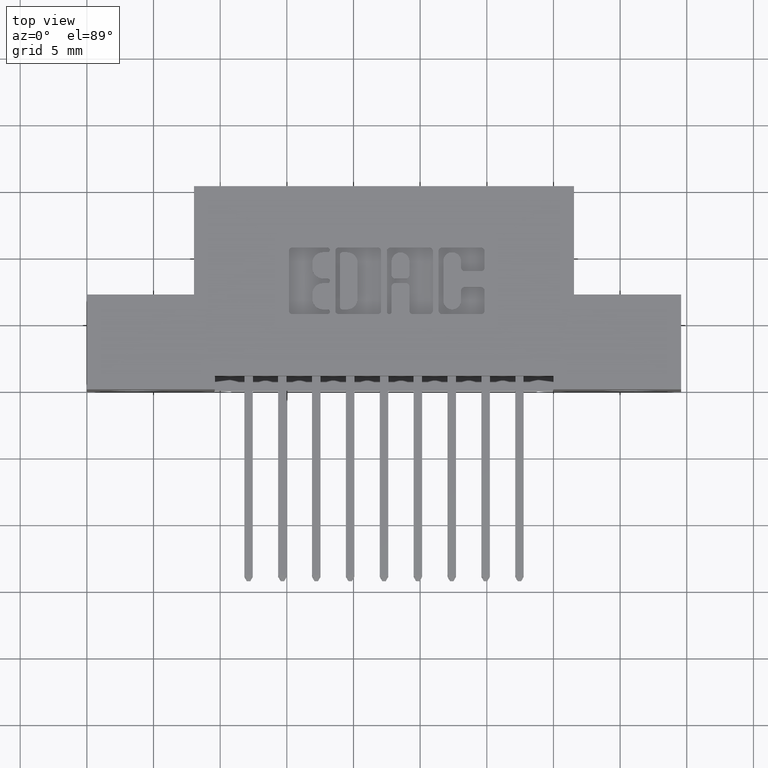
[diagram: clean part render]
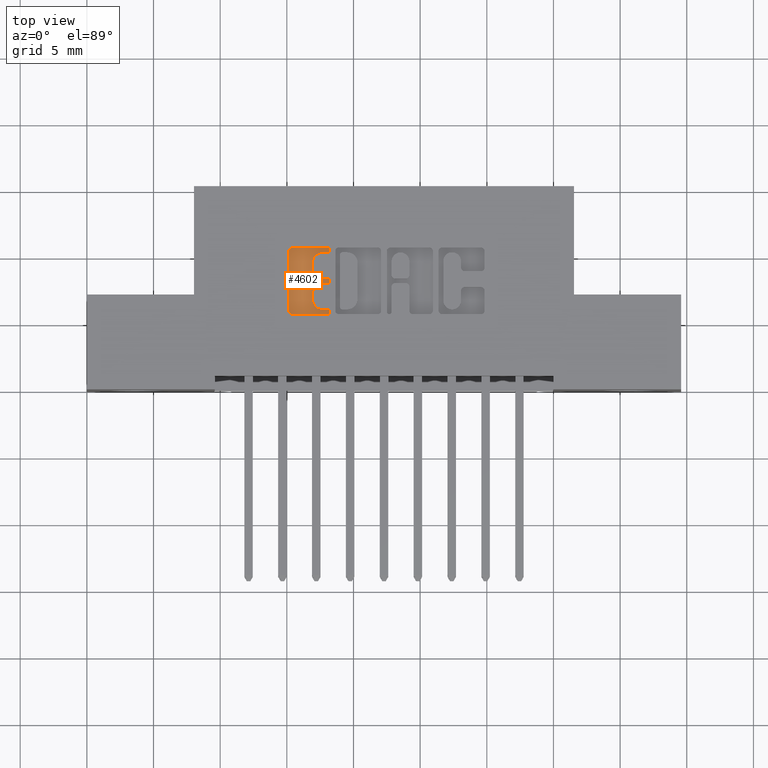
[diagram: same view with one face highlighted and labeled with its STEP entity id]
A machine part, top view. The second image highlights one B-rep face of the part: STEP entity #4602.
In plain terms, the highlighted planar face has unit normal (0, 0, 1).
Its self-contained STEP definition (entity closure, byte-faithful):
#32 = DIRECTION ( 'NONE',  ( 1.000000000000000000, 0.0000000000000000000, 0.0000000000000000000 ) ) ;
#43 = CARTESIAN_POINT ( 'NONE',  ( 0.6971370600051096700, 0.2669953808994903200, -0.01000000000000000000 ) ) ;
#83 = LINE ( 'NONE', #3894, #7371 ) ;
#114 = CARTESIAN_POINT ( 'NONE',  ( 0.6657269153529095100, 0.3730046191005197400, -0.01000000000000000000 ) ) ;
#207 = VERTEX_POINT ( 'NONE', #114 ) ;
#212 = DIRECTION ( 'NONE',  ( 1.000000000000000000, 0.0000000000000000000, 0.0000000000000000000 ) ) ;
#277 = CARTESIAN_POINT ( 'NONE',  ( 0.5965264404161154700, 0.0000000000000000000, -0.01000000000000000000 ) ) ;
#287 = CARTESIAN_POINT ( 'NONE',  ( 0.7106336065353514600, 0.4044147637527356600, -0.01000000000000000000 ) ) ;
#301 = DIRECTION ( 'NONE',  ( 1.000000000000000000, 0.0000000000000000000, 0.0000000000000000000 ) ) ;
#330 = EDGE_CURVE ( 'NONE', #2755, #7153, #999, .T. ) ;
#383 = CARTESIAN_POINT ( 'NONE',  ( 0.7106336065353100500, 0.3200000000000202700, -0.01000000000000000000 ) ) ;
#490 = CARTESIAN_POINT ( 'NONE',  ( 0.6657269153529278300, 0.2817188862052004700, -0.01000000000000000000 ) ) ;
#497 = CIRCLE ( 'NONE', #2945, 0.006870969142662229500 ) ;
#580 = CARTESIAN_POINT ( 'NONE',  ( 0.7175045756779977500, 0.2287142671046478700, -0.01000000000000000000 ) ) ;
#633 = AXIS2_PLACEMENT_3D ( 'NONE', #3904, #1431, #7676 ) ;
#829 = DIRECTION ( 'NONE',  ( -0.0000000000000000000, 0.0000000000000000000, 1.000000000000000000 ) ) ;
#900 = VERTEX_POINT ( 'NONE', #3642 ) ;
#962 = DIRECTION ( 'NONE',  ( -0.0000000000000000000, 0.0000000000000000000, 1.000000000000000000 ) ) ;
#999 = LINE ( 'NONE', #5216, #2473 ) ;
#1074 = DIRECTION ( 'NONE',  ( -0.0000000000000000000, 0.0000000000000000000, 1.000000000000000000 ) ) ;
#1120 = CARTESIAN_POINT ( 'NONE',  ( 0.6971370600050841300, 0.3131290308573567700, -0.01000000000000000000 ) ) ;
#1131 = DIRECTION ( 'NONE',  ( -0.0000000000000000000, 0.0000000000000000000, 1.000000000000000000 ) ) ;
#1136 = CARTESIAN_POINT ( 'NONE',  ( 0.0000000000000000000, 0.3131290308573567700, -0.01000000000000000000 ) ) ;
#1178 = EDGE_CURVE ( 'NONE', #1768, #9950, #7542, .T. ) ;
#1214 = LINE ( 'NONE', #277, #9369 ) ;
#1249 = VERTEX_POINT ( 'NONE', #8204 ) ;
#1259 = ORIENTED_EDGE ( 'NONE', *, *, #7040, .F. ) ;
#1289 = EDGE_CURVE ( 'NONE', #5987, #8254, #9887, .T. ) ;
#1293 = EDGE_CURVE ( 'NONE', #5171, #6492, #5131, .T. ) ;
#1410 = VERTEX_POINT ( 'NONE', #9040 ) ;
#1413 = AXIS2_PLACEMENT_3D ( 'NONE', #2251, #3122, #32 ) ;
#1431 = DIRECTION ( 'NONE',  ( -0.0000000000000000000, 0.0000000000000000000, 1.000000000000000000 ) ) ;
#1539 = DIRECTION ( 'NONE',  ( 1.000000000000000000, 0.0000000000000000000, 0.0000000000000000000 ) ) ;
#1591 = ORIENTED_EDGE ( 'NONE', *, *, #2964, .T. ) ;
#1634 = ORIENTED_EDGE ( 'NONE', *, *, #1178, .T. ) ;
#1736 = AXIS2_PLACEMENT_3D ( 'NONE', #3467, #1131, #6582 ) ;
#1768 = VERTEX_POINT ( 'NONE', #8764 ) ;
#1814 = VECTOR ( 'NONE', #7881, 39.37007874015748100 ) ;
#1974 = CARTESIAN_POINT ( 'NONE',  ( 0.6063421106199380400, 0.4083410318342100600, -0.01000000000000000000 ) ) ;
#2111 = DIRECTION ( 'NONE',  ( -1.000000000000000000, 0.0000000000000000000, 0.0000000000000000000 ) ) ;
#2159 = FACE_OUTER_BOUND ( 'NONE', #10035, .T. ) ;
#2184 = DIRECTION ( 'NONE',  ( -0.0000000000000000000, 0.0000000000000000000, 1.000000000000000000 ) ) ;
#2251 = CARTESIAN_POINT ( 'NONE',  ( 0.0000000000000000000, 0.0000000000000000000, -0.01000000000000000000 ) ) ;
#2415 = VERTEX_POINT ( 'NONE', #4291 ) ;
#2468 = CARTESIAN_POINT ( 'NONE',  ( 0.6063421106199222700, 0.2316589681657898700, -0.01000000000000000000 ) ) ;
#2473 = VECTOR ( 'NONE', #2111, 39.37007874015748100 ) ;
#2548 = VECTOR ( 'NONE', #3070, 39.37007874015748100 ) ;
#2608 = CARTESIAN_POINT ( 'NONE',  ( 0.7106336065353100500, 0.3200000000000202700, -0.01000000000000000000 ) ) ;
#2708 = ORIENTED_EDGE ( 'NONE', *, *, #4150, .T. ) ;
#2743 = VERTEX_POINT ( 'NONE', #4020 ) ;
#2755 = VERTEX_POINT ( 'NONE', #3299 ) ;
#2870 = CARTESIAN_POINT ( 'NONE',  ( 0.6971370600051254300, 0.3730046191005197400, -0.01000000000000000000 ) ) ;
#2906 = CIRCLE ( 'NONE', #8642, 0.009815670203805798900 ) ;
#2945 = AXIS2_PLACEMENT_3D ( 'NONE', #9652, #6622, #5873 ) ;
#2956 = CARTESIAN_POINT ( 'NONE',  ( 0.6971370600050841300, 0.3582811137948582700, -0.01000000000000000000 ) ) ;
#2964 = EDGE_CURVE ( 'NONE', #5815, #2755, #7267, .T. ) ;
#3070 = DIRECTION ( 'NONE',  ( 1.000000000000000000, 7.203446383881649800E-015, 0.0000000000000000000 ) ) ;
#3122 = DIRECTION ( 'NONE',  ( -0.0000000000000000000, 0.0000000000000000000, 1.000000000000000000 ) ) ;
#3169 = CIRCLE ( 'NONE', #633, 0.006870969142662229500 ) ;
#3299 = CARTESIAN_POINT ( 'NONE',  ( 0.7106336065353100500, 0.3268709691426838200, -0.01000000000000000000 ) ) ;
#3319 = AXIS2_PLACEMENT_3D ( 'NONE', #1974, #7402, #5206 ) ;
#3327 = EDGE_CURVE ( 'NONE', #4131, #7153, #4755, .T. ) ;
#3369 = CARTESIAN_POINT ( 'NONE',  ( 0.6063421106199186100, 0.2218432979619849000, -0.01000000000000000000 ) ) ;
#3394 = EDGE_CURVE ( 'NONE', #900, #5171, #6325, .T. ) ;
#3467 = CARTESIAN_POINT ( 'NONE',  ( 0.7106336065353512400, 0.4112857328953862200, -0.01000000000000000000 ) ) ;
#3501 = ORIENTED_EDGE ( 'NONE', *, *, #6921, .T. ) ;
#3505 = CARTESIAN_POINT ( 'NONE',  ( 0.7106336064153888600, 0.3131290308573567700, -0.01000000000000000000 ) ) ;
#3509 = DIRECTION ( 'NONE',  ( 1.000000000000000000, 0.0000000000000000000, 0.0000000000000000000 ) ) ;
#3597 = CARTESIAN_POINT ( 'NONE',  ( 0.0000000000000000000, 0.4181567020380326800, -0.01000000000000000000 ) ) ;
#3619 = ORIENTED_EDGE ( 'NONE', *, *, #5825, .T. ) ;
#3637 = LINE ( 'NONE', #6825, #2548 ) ;
#3642 = CARTESIAN_POINT ( 'NONE',  ( 0.7175045756779997500, 0.4112857328953862200, -0.01000000000000000000 ) ) ;
#3684 = DIRECTION ( 'NONE',  ( 1.000000000000000000, 0.0000000000000000000, 0.0000000000000000000 ) ) ;
#3772 = VECTOR ( 'NONE', #5101, 39.37007874015748100 ) ;
#3781 = CIRCLE ( 'NONE', #3319, 0.009815670203822599700 ) ;
#3782 = EDGE_CURVE ( 'NONE', #2415, #207, #6561, .T. ) ;
#3869 = CIRCLE ( 'NONE', #7868, 0.03141014465218178200 ) ;
#3894 = CARTESIAN_POINT ( 'NONE',  ( 0.6657269153529095100, 0.0000000000000000000, -0.01000000000000000000 ) ) ;
#3904 = CARTESIAN_POINT ( 'NONE',  ( 0.7106336065353355800, 0.2287142671046478700, -0.01000000000000000000 ) ) ;
#3930 = CARTESIAN_POINT ( 'NONE',  ( 0.7106336064154144000, 0.2218432979619856500, -0.01000000000000000000 ) ) ;
#4020 = CARTESIAN_POINT ( 'NONE',  ( 0.5965264404161154700, 0.4083410318342100600, -0.01000000000000000000 ) ) ;
#4131 = VERTEX_POINT ( 'NONE', #7720 ) ;
#4150 = EDGE_CURVE ( 'NONE', #8969, #8027, #3637, .T. ) ;
#4268 = EDGE_CURVE ( 'NONE', #1768, #8015, #3869, .T. ) ;
#4291 = CARTESIAN_POINT ( 'NONE',  ( 0.6971370600051254300, 0.4044147637527356600, -0.01000000000000000000 ) ) ;
#4386 = DIRECTION ( 'NONE',  ( 1.000000000000000000, 0.0000000000000000000, 0.0000000000000000000 ) ) ;
#4408 = VECTOR ( 'NONE', #6447, 39.37007874015748100 ) ;
#4462 = CARTESIAN_POINT ( 'NONE',  ( 0.6971370600050841300, 0.3268709691426838200, -0.01000000000000000000 ) ) ;
#4485 = ORIENTED_EDGE ( 'NONE', *, *, #3327, .F. ) ;
#4523 = VECTOR ( 'NONE', #5094, 39.37007874015748100 ) ;
#4602 = ADVANCED_FACE ( 'NONE', ( #2159 ), #10081, .T. ) ;
#4663 = EDGE_CURVE ( 'NONE', #4131, #207, #83, .T. ) ;
#4720 = DIRECTION ( 'NONE',  ( 1.000000000000000000, 0.0000000000000000000, 0.0000000000000000000 ) ) ;
#4755 = CIRCLE ( 'NONE', #8779, 0.03141014465217454400 ) ;
#4814 = AXIS2_PLACEMENT_3D ( 'NONE', #2608, #8739, #212 ) ;
#4855 = CARTESIAN_POINT ( 'NONE',  ( 0.6657269153529278300, 0.0000000000000000000, -0.01000000000000000000 ) ) ;
#4858 = ORIENTED_EDGE ( 'NONE', *, *, #9095, .T. ) ;
#5026 = CARTESIAN_POINT ( 'NONE',  ( -2.801494792115253600E-014, 0.2355852362472256300, -0.01000000000000000000 ) ) ;
#5094 = DIRECTION ( 'NONE',  ( -1.000000000000000000, 0.0000000000000000000, 0.0000000000000000000 ) ) ;
#5101 = DIRECTION ( 'NONE',  ( -1.000000000000000000, -1.189163988687022500E-013, 0.0000000000000000000 ) ) ;
#5131 = LINE ( 'NONE', #3597, #4523 ) ;
#5171 = VERTEX_POINT ( 'NONE', #8671 ) ;
#5206 = DIRECTION ( 'NONE',  ( 1.000000000000000000, 0.0000000000000000000, 0.0000000000000000000 ) ) ;
#5216 = CARTESIAN_POINT ( 'NONE',  ( 0.0000000000000000000, 0.3268709691426838200, -0.01000000000000000000 ) ) ;
#5269 = ORIENTED_EDGE ( 'NONE', *, *, #5961, .T. ) ;
#5278 = LINE ( 'NONE', #7102, #1814 ) ;
#5648 = ORIENTED_EDGE ( 'NONE', *, *, #7039, .T. ) ;
#5815 = VERTEX_POINT ( 'NONE', #8763 ) ;
#5825 = EDGE_CURVE ( 'NONE', #2415, #6642, #5278, .T. ) ;
#5873 = DIRECTION ( 'NONE',  ( 1.000000000000000000, 0.0000000000000000000, 0.0000000000000000000 ) ) ;
#5961 = EDGE_CURVE ( 'NONE', #2743, #1249, #1214, .T. ) ;
#5968 = LINE ( 'NONE', #5026, #3772 ) ;
#5987 = VERTEX_POINT ( 'NONE', #1120 ) ;
#6089 = EDGE_CURVE ( 'NONE', #6492, #2743, #3781, .T. ) ;
#6134 = ORIENTED_EDGE ( 'NONE', *, *, #1289, .T. ) ;
#6242 = VERTEX_POINT ( 'NONE', #580 ) ;
#6304 = CARTESIAN_POINT ( 'NONE',  ( 0.7106336065353512400, 0.4112857328953862200, -0.01000000000000000000 ) ) ;
#6325 = CIRCLE ( 'NONE', #9715, 0.006870969142648433200 ) ;
#6357 = DIRECTION ( 'NONE',  ( 1.000000000000000000, 0.0000000000000000000, 0.0000000000000000000 ) ) ;
#6432 = DIRECTION ( 'NONE',  ( 1.000000000000000000, 0.0000000000000000000, 0.0000000000000000000 ) ) ;
#6447 = DIRECTION ( 'NONE',  ( 0.0000000000000000000, 1.000000000000000000, -0.0000000000000000000 ) ) ;
#6449 = EDGE_CURVE ( 'NONE', #6242, #1410, #3169, .T. ) ;
#6492 = VERTEX_POINT ( 'NONE', #9294 ) ;
#6541 = CARTESIAN_POINT ( 'NONE',  ( 0.6971370600050841300, 0.2817188862052004700, -0.01000000000000000000 ) ) ;
#6561 = CIRCLE ( 'NONE', #8066, 0.03141014465221592800 ) ;
#6582 = DIRECTION ( 'NONE',  ( 1.000000000000000000, 0.0000000000000000000, 0.0000000000000000000 ) ) ;
#6622 = DIRECTION ( 'NONE',  ( -0.0000000000000000000, 0.0000000000000000000, 1.000000000000000000 ) ) ;
#6642 = VERTEX_POINT ( 'NONE', #287 ) ;
#6793 = CIRCLE ( 'NONE', #8062, 0.03141014465215624000 ) ;
#6825 = CARTESIAN_POINT ( 'NONE',  ( -1.598036302492608100E-015, 0.2218432979619805200, -0.01000000000000000000 ) ) ;
#6921 = EDGE_CURVE ( 'NONE', #1249, #8969, #2906, .T. ) ;
#7010 = ORIENTED_EDGE ( 'NONE', *, *, #6089, .T. ) ;
#7039 = EDGE_CURVE ( 'NONE', #8254, #5815, #7378, .T. ) ;
#7040 = EDGE_CURVE ( 'NONE', #5987, #9950, #6793, .T. ) ;
#7079 = CARTESIAN_POINT ( 'NONE',  ( 0.6971370600051096700, 0.2355852362473085400, -0.01000000000000000000 ) ) ;
#7102 = CARTESIAN_POINT ( 'NONE',  ( 0.0000000000000000000, 0.4044147637527356600, -0.01000000000000000000 ) ) ;
#7153 = VERTEX_POINT ( 'NONE', #4462 ) ;
#7267 = CIRCLE ( 'NONE', #8275, 0.006870969142663458500 ) ;
#7282 = ORIENTED_EDGE ( 'NONE', *, *, #330, .T. ) ;
#7371 = VECTOR ( 'NONE', #10043, 39.37007874015748100 ) ;
#7378 = CIRCLE ( 'NONE', #4814, 0.006870969142663458500 ) ;
#7402 = DIRECTION ( 'NONE',  ( -0.0000000000000000000, 0.0000000000000000000, 1.000000000000000000 ) ) ;
#7542 = LINE ( 'NONE', #4855, #4408 ) ;
#7636 = ORIENTED_EDGE ( 'NONE', *, *, #4663, .T. ) ;
#7676 = DIRECTION ( 'NONE',  ( 1.000000000000000000, 0.0000000000000000000, 0.0000000000000000000 ) ) ;
#7720 = CARTESIAN_POINT ( 'NONE',  ( 0.6657269153529095100, 0.3582811137948582700, -0.01000000000000000000 ) ) ;
#7834 = ORIENTED_EDGE ( 'NONE', *, *, #8283, .T. ) ;
#7841 = ORIENTED_EDGE ( 'NONE', *, *, #9132, .T. ) ;
#7868 = AXIS2_PLACEMENT_3D ( 'NONE', #43, #8646, #1539 ) ;
#7881 = DIRECTION ( 'NONE',  ( 1.000000000000000000, 0.0000000000000000000, 0.0000000000000000000 ) ) ;
#8015 = VERTEX_POINT ( 'NONE', #7079 ) ;
#8027 = VERTEX_POINT ( 'NONE', #3930 ) ;
#8062 = AXIS2_PLACEMENT_3D ( 'NONE', #6541, #962, #6432 ) ;
#8066 = AXIS2_PLACEMENT_3D ( 'NONE', #2870, #2184, #3684 ) ;
#8204 = CARTESIAN_POINT ( 'NONE',  ( 0.5965264404161154700, 0.2316589681657898700, -0.01000000000000000000 ) ) ;
#8254 = VERTEX_POINT ( 'NONE', #3505 ) ;
#8275 = AXIS2_PLACEMENT_3D ( 'NONE', #383, #1074, #301 ) ;
#8283 = EDGE_CURVE ( 'NONE', #6642, #900, #9174, .T. ) ;
#8374 = ORIENTED_EDGE ( 'NONE', *, *, #6449, .T. ) ;
#8642 = AXIS2_PLACEMENT_3D ( 'NONE', #2468, #8669, #6357 ) ;
#8646 = DIRECTION ( 'NONE',  ( -0.0000000000000000000, 0.0000000000000000000, 1.000000000000000000 ) ) ;
#8669 = DIRECTION ( 'NONE',  ( -0.0000000000000000000, 0.0000000000000000000, 1.000000000000000000 ) ) ;
#8671 = CARTESIAN_POINT ( 'NONE',  ( 0.7106336065353512400, 0.4181567020380326800, -0.01000000000000000000 ) ) ;
#8739 = DIRECTION ( 'NONE',  ( -0.0000000000000000000, 0.0000000000000000000, 1.000000000000000000 ) ) ;
#8763 = CARTESIAN_POINT ( 'NONE',  ( 0.7175045756779734300, 0.3200000000000202700, -0.01000000000000000000 ) ) ;
#8764 = CARTESIAN_POINT ( 'NONE',  ( 0.6657269153529278300, 0.2669953808994903200, -0.01000000000000000000 ) ) ;
#8779 = AXIS2_PLACEMENT_3D ( 'NONE', #2956, #9010, #4386 ) ;
#8969 = VERTEX_POINT ( 'NONE', #3369 ) ;
#9010 = DIRECTION ( 'NONE',  ( -0.0000000000000000000, 0.0000000000000000000, 1.000000000000000000 ) ) ;
#9040 = CARTESIAN_POINT ( 'NONE',  ( 0.7106336064154144000, 0.2355852362473101500, -0.01000000000000000000 ) ) ;
#9095 = EDGE_CURVE ( 'NONE', #1410, #8015, #5968, .T. ) ;
#9132 = EDGE_CURVE ( 'NONE', #8027, #6242, #497, .T. ) ;
#9174 = CIRCLE ( 'NONE', #1736, 0.006870969142648433200 ) ;
#9294 = CARTESIAN_POINT ( 'NONE',  ( 0.6063421106199380400, 0.4181567020380326800, -0.01000000000000000000 ) ) ;
#9369 = VECTOR ( 'NONE', #9664, 39.37007874015748100 ) ;
#9408 = ORIENTED_EDGE ( 'NONE', *, *, #1293, .T. ) ;
#9438 = ORIENTED_EDGE ( 'NONE', *, *, #4268, .F. ) ;
#9477 = ORIENTED_EDGE ( 'NONE', *, *, #3394, .T. ) ;
#9625 = VECTOR ( 'NONE', #3509, 39.37007874015748100 ) ;
#9652 = CARTESIAN_POINT ( 'NONE',  ( 0.7106336065353355800, 0.2287142671046478700, -0.01000000000000000000 ) ) ;
#9664 = DIRECTION ( 'NONE',  ( 0.0000000000000000000, -1.000000000000000000, 0.0000000000000000000 ) ) ;
#9715 = AXIS2_PLACEMENT_3D ( 'NONE', #6304, #829, #4720 ) ;
#9887 = LINE ( 'NONE', #1136, #9625 ) ;
#9930 = ORIENTED_EDGE ( 'NONE', *, *, #3782, .F. ) ;
#9950 = VERTEX_POINT ( 'NONE', #490 ) ;
#10035 = EDGE_LOOP ( 'NONE', ( #9930, #3619, #7834, #9477, #9408, #7010, #5269, #3501, #2708, #7841, #8374, #4858, #9438, #1634, #1259, #6134, #5648, #1591, #7282, #4485, #7636 ) ) ;
#10043 = DIRECTION ( 'NONE',  ( 0.0000000000000000000, 1.000000000000000000, -0.0000000000000000000 ) ) ;
#10081 = PLANE ( 'NONE',  #1413 ) ;